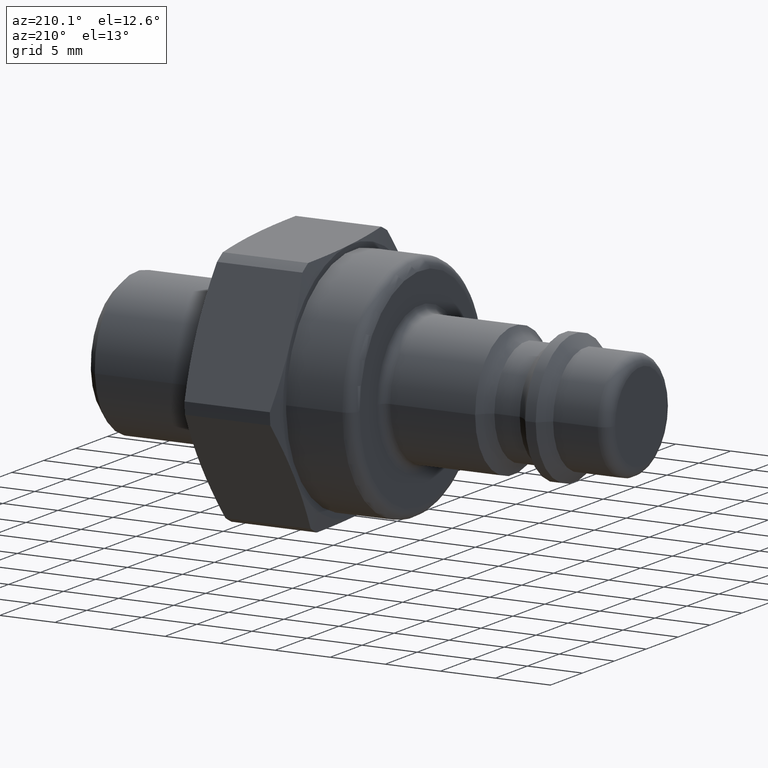
[diagram: clean part render]
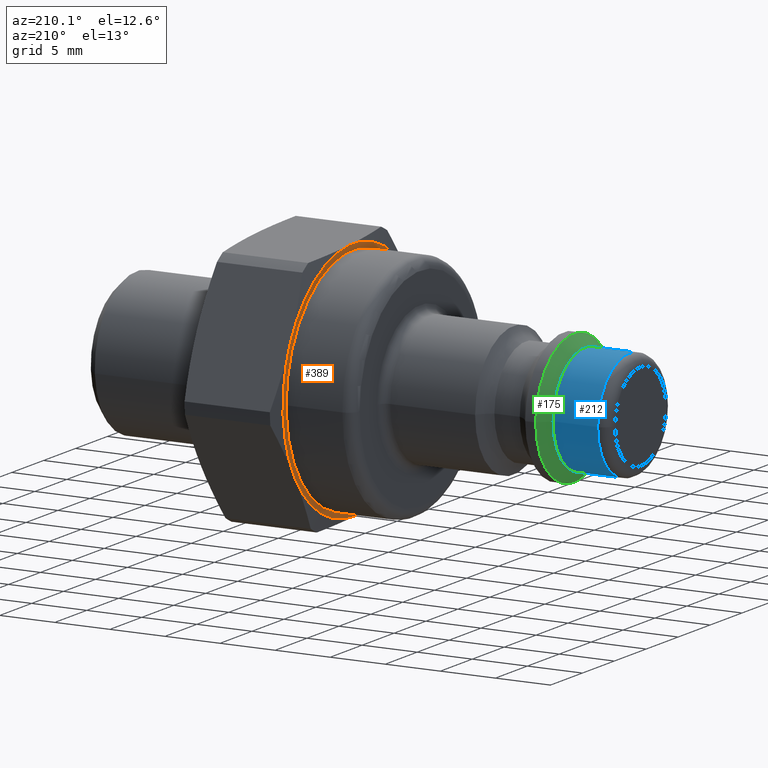
[diagram: same view with three faces highlighted in distinct colors, each labeled with its STEP entity id]
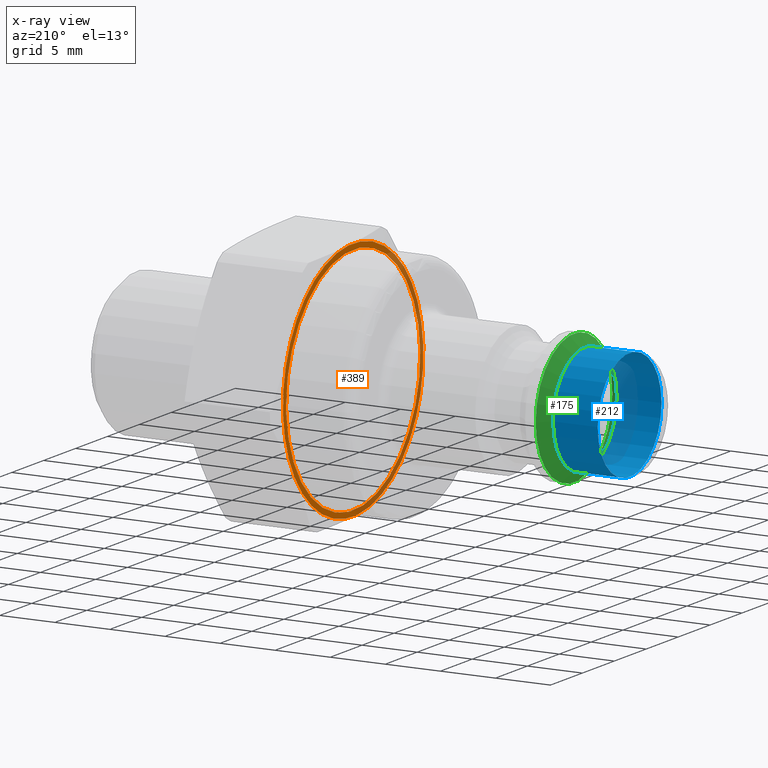
[diagram: x-ray of the same camera — body ghosted, the three highlighted faces saturated]
A machine part, auxiliary view with three faces highlighted in distinct colors.
The next image is the same camera in x-ray (body ghosted, the three faces saturated) — at least one of them is partly hidden behind the body in this view.
Their STEP definitions:

[orange] entity #389 — the highlighted planar face has unit normal (-1, 0, 0).
#230=CARTESIAN_POINT('',(26.100000000000009,10.479489730334826,-0.655968743010619));
#231=VERTEX_POINT('',#230);
#232=CARTESIAN_POINT('',(26.100000000000009,0.0,0.0));
#233=DIRECTION('',(-1.000000000000000,0.0,0.0));
#234=DIRECTION('',(0.0,0.998046640984269,-0.062473213620059));
#235=AXIS2_PLACEMENT_3D('',#232,#233,#234);
#236=CIRCLE('',#235,10.500000000000000);
#237=EDGE_CURVE('',#231,#231,#236,.T.);
#325=CARTESIAN_POINT('',(26.100000000000009,10.729001390580894,-0.671587046415633));
#326=DIRECTION('',(-1.0,0.0,0.0));
#327=DIRECTION('',(0.0,0.062473213620059,0.998046640984269));
#328=AXIS2_PLACEMENT_3D('',#325,#326,#327);
#329=PLANE('',#328);
#330=CARTESIAN_POINT('',(26.100000000000009,-0.687205349820648,-10.978513050826962));
#331=VERTEX_POINT('',#330);
#332=CARTESIAN_POINT('',(26.100000000000009,-9.851273872705471,-4.894119234852229));
#333=VERTEX_POINT('',#332);
#334=CARTESIAN_POINT('',(26.100000000000009,0.0,0.0));
#335=DIRECTION('',(-1.0,0.0,0.0));
#336=DIRECTION('',(0.0,0.998046640984269,-0.062473213620059));
#337=AXIS2_PLACEMENT_3D('',#334,#335,#336);
#338=CIRCLE('',#337,11.000000000000002);
#339=EDGE_CURVE('',#331,#333,#338,.T.);
#340=ORIENTED_EDGE('',*,*,#339,.T.);
#341=CARTESIAN_POINT('',(26.100000000000009,-9.164068522884826,6.084393815974732));
#342=VERTEX_POINT('',#341);
#343=CARTESIAN_POINT('',(26.100000000000009,0.0,0.0));
#344=DIRECTION('',(-1.0,0.0,0.0));
#345=DIRECTION('',(0.0,0.998046640984269,-0.062473213620059));
#346=AXIS2_PLACEMENT_3D('',#343,#344,#345);
#347=CIRCLE('',#346,11.000000000000002);
#348=EDGE_CURVE('',#333,#342,#347,.T.);
#349=ORIENTED_EDGE('',*,*,#348,.T.);
#350=CARTESIAN_POINT('',(26.100000000000009,0.687205349820646,10.978513050826962));
#351=VERTEX_POINT('',#350);
#352=CARTESIAN_POINT('',(26.100000000000009,0.0,0.0));
#353=DIRECTION('',(-1.0,0.0,0.0));
#354=DIRECTION('',(0.0,0.998046640984269,-0.062473213620059));
#355=AXIS2_PLACEMENT_3D('',#352,#353,#354);
#356=CIRCLE('',#355,11.000000000000002);
#357=EDGE_CURVE('',#342,#351,#356,.T.);
#358=ORIENTED_EDGE('',*,*,#357,.T.);
#359=CARTESIAN_POINT('',(26.100000000000009,9.851273872705470,4.894119234852232));
#360=VERTEX_POINT('',#359);
#361=CARTESIAN_POINT('',(26.100000000000009,0.0,0.0));
#362=DIRECTION('',(-1.0,0.0,0.0));
#363=DIRECTION('',(0.0,0.998046640984269,-0.062473213620059));
#364=AXIS2_PLACEMENT_3D('',#361,#362,#363);
#365=CIRCLE('',#364,11.000000000000002);
#366=EDGE_CURVE('',#351,#360,#365,.T.);
#367=ORIENTED_EDGE('',*,*,#366,.T.);
#368=CARTESIAN_POINT('',(26.100000000000009,9.164068522884829,-6.084393815974726));
#369=VERTEX_POINT('',#368);
#370=CARTESIAN_POINT('',(26.100000000000009,0.0,0.0));
#371=DIRECTION('',(-1.0,0.0,0.0));
#372=DIRECTION('',(0.0,0.998046640984269,-0.062473213620059));
#373=AXIS2_PLACEMENT_3D('',#370,#371,#372);
#374=CIRCLE('',#373,11.000000000000002);
#375=EDGE_CURVE('',#360,#369,#374,.T.);
#376=ORIENTED_EDGE('',*,*,#375,.T.);
#377=CARTESIAN_POINT('',(26.100000000000009,0.0,0.0));
#378=DIRECTION('',(-1.0,0.0,0.0));
#379=DIRECTION('',(0.0,0.998046640984269,-0.062473213620059));
#380=AXIS2_PLACEMENT_3D('',#377,#378,#379);
#381=CIRCLE('',#380,11.000000000000002);
#382=EDGE_CURVE('',#369,#331,#381,.T.);
#383=ORIENTED_EDGE('',*,*,#382,.T.);
#384=EDGE_LOOP('',(#340,#349,#358,#367,#376,#383));
#385=FACE_OUTER_BOUND('',#384,.T.);
#386=ORIENTED_EDGE('',*,*,#237,.F.);
#387=EDGE_LOOP('',(#386));
#388=FACE_BOUND('',#387,.T.);
#389=ADVANCED_FACE('',(#385,#388),#329,.T.);

[blue] entity #212 — the highlighted cylindrical surface (bore or boss wall) has radius 5 mm, axis along (1, 0, 0).
#164=CARTESIAN_POINT('',(5.049999999999999,5.0,0.0));
#165=VERTEX_POINT('',#164);
#166=CARTESIAN_POINT('',(5.049999999999999,0.0,0.0));
#167=DIRECTION('',(1.0,0.0,0.0));
#168=DIRECTION('',(0.0,1.0,0.0));
#169=AXIS2_PLACEMENT_3D('',#166,#167,#168);
#170=CIRCLE('',#169,5.0);
#171=EDGE_CURVE('',#165,#165,#170,.T.);
#193=CARTESIAN_POINT('',(2.524999999999999,0.0,0.0));
#194=DIRECTION('',(1.0,0.0,0.0));
#195=DIRECTION('',(0.0,1.0,0.0));
#196=AXIS2_PLACEMENT_3D('',#193,#194,#195);
#197=CYLINDRICAL_SURFACE('',#196,5.0);
#198=ORIENTED_EDGE('',*,*,#171,.F.);
#199=EDGE_LOOP('',(#198));
#200=FACE_OUTER_BOUND('',#199,.T.);
#201=CARTESIAN_POINT('',(0.999999999999999,5.0,-1.224647E-015));
#202=VERTEX_POINT('',#201);
#203=CARTESIAN_POINT('',(0.999999999999999,0.0,0.0));
#204=DIRECTION('',(-1.0,0.0,0.0));
#205=DIRECTION('',(0.0,-1.0,0.0));
#206=AXIS2_PLACEMENT_3D('',#203,#204,#205);
#207=CIRCLE('',#206,5.0);
#208=EDGE_CURVE('',#202,#202,#207,.T.);
#209=ORIENTED_EDGE('',*,*,#208,.F.);
#210=EDGE_LOOP('',(#209));
#211=FACE_BOUND('',#210,.T.);
#212=ADVANCED_FACE('',(#200,#211),#197,.T.);

[green] entity #175 — the highlighted conical surface has half-angle 45 deg.
#144=CARTESIAN_POINT('',(6.049999999999995,6.000000000000001,0.0));
#145=VERTEX_POINT('',#144);
#146=CARTESIAN_POINT('',(6.049999999999995,0.0,0.0));
#147=DIRECTION('',(1.0,0.0,0.0));
#148=DIRECTION('',(0.0,1.0,0.0));
#149=AXIS2_PLACEMENT_3D('',#146,#147,#148);
#150=CIRCLE('',#149,6.000000000000001);
#151=EDGE_CURVE('',#145,#145,#150,.T.);
#156=CARTESIAN_POINT('',(5.549999999999997,0.0,0.0));
#157=DIRECTION('',(1.0,0.0,0.0));
#158=DIRECTION('',(0.0,1.0,0.0));
#159=AXIS2_PLACEMENT_3D('',#156,#157,#158);
#160=CONICAL_SURFACE('',#159,5.500000000000000,45.000000000000135);
#161=ORIENTED_EDGE('',*,*,#151,.F.);
#162=EDGE_LOOP('',(#161));
#163=FACE_OUTER_BOUND('',#162,.T.);
#164=CARTESIAN_POINT('',(5.049999999999999,5.0,0.0));
#165=VERTEX_POINT('',#164);
#166=CARTESIAN_POINT('',(5.049999999999999,0.0,0.0));
#167=DIRECTION('',(1.0,0.0,0.0));
#168=DIRECTION('',(0.0,1.0,0.0));
#169=AXIS2_PLACEMENT_3D('',#166,#167,#168);
#170=CIRCLE('',#169,5.0);
#171=EDGE_CURVE('',#165,#165,#170,.T.);
#172=ORIENTED_EDGE('',*,*,#171,.T.);
#173=EDGE_LOOP('',(#172));
#174=FACE_BOUND('',#173,.T.);
#175=ADVANCED_FACE('',(#163,#174),#160,.T.);